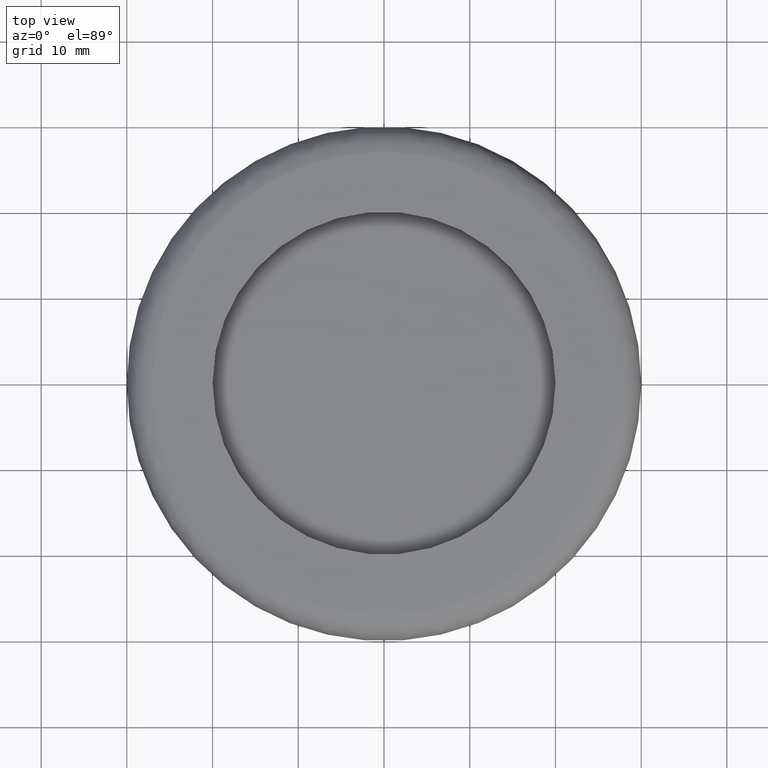
[diagram: clean part render]
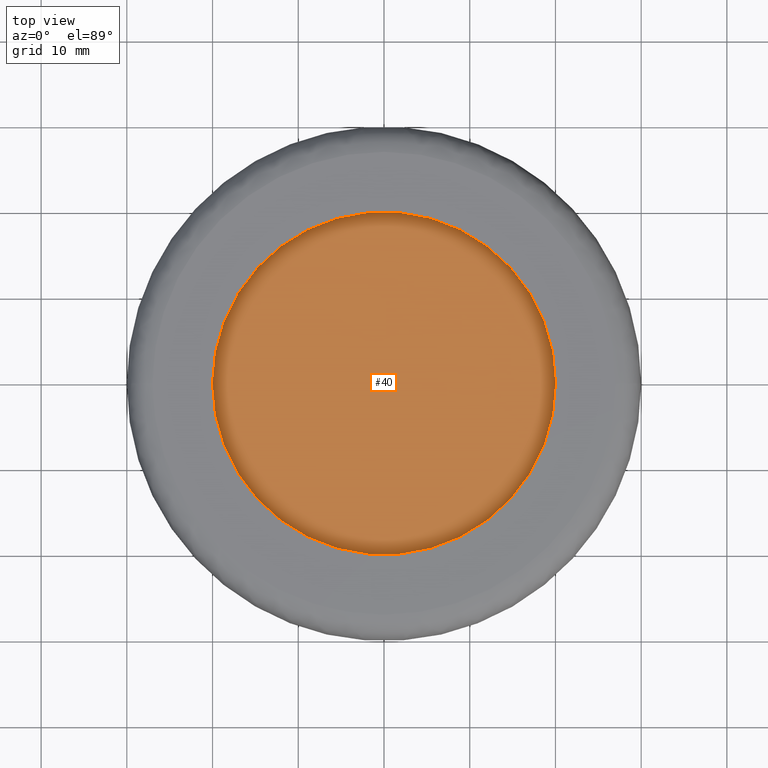
[diagram: same view with one face highlighted and labeled with its STEP entity id]
A machine part, top view. The second image highlights one B-rep face of the part: STEP entity #40.
In plain terms, the highlighted planar face has unit normal (-0, 0, -1).
Its self-contained STEP definition (entity closure, byte-faithful):
#40=ADVANCED_FACE('',(#61),#60,.F.);
#60=PLANE('',#267);
#61=FACE_OUTER_BOUND('',#268,.T.);
#264=CARTESIAN_POINT('',(4.60000000000E+01,-4.15692193817E+01,-1.00000000000E+00));
#265=DIRECTION('',(-0.00000000000E+00,0.00000000000E+00,-1.00000000000E+00));
#266=DIRECTION('',(-1.00000000000E+00,0.00000000000E+00,0.00000000000E+00));
#267=AXIS2_PLACEMENT_3D('',#264,#265,#266);
#268=EDGE_LOOP('',(#452,#453));
#452=ORIENTED_EDGE('',*,*,#528,.F.);
#453=ORIENTED_EDGE('',*,*,#529,.F.);
#528=EDGE_CURVE('',#566,#567,#568,.T.);
#529=EDGE_CURVE('',#567,#566,#574,.T.);
#566=VERTEX_POINT('',#818);
#567=VERTEX_POINT('',#819);
#568=CIRCLE('',#823,2.00000000000E+01);
#574=CIRCLE('',#827,2.00000000000E+01);
#818=CARTESIAN_POINT('',(2.00000000000E+01,0.00000000000E+00,-1.00000000000E+00));
#819=CARTESIAN_POINT('',(-2.00000000000E+01,0.00000000000E+00,-1.00000000000E+00));
#820=CARTESIAN_POINT('',(-1.19371179608E-12,0.00000000000E+00,-1.00000000000E+00));
#821=DIRECTION('',(-0.00000000000E+00,0.00000000000E+00,-1.00000000000E+00));
#822=DIRECTION('',(-1.00000000000E+00,-1.22460635382E-16,0.00000000000E+00));
#823=AXIS2_PLACEMENT_3D('',#820,#821,#822);
#824=CARTESIAN_POINT('',(-1.19371179608E-12,0.00000000000E+00,-1.00000000000E+00));
#825=DIRECTION('',(-0.00000000000E+00,0.00000000000E+00,-1.00000000000E+00));
#826=DIRECTION('',(-1.00000000000E+00,-1.22460635382E-16,0.00000000000E+00));
#827=AXIS2_PLACEMENT_3D('',#824,#825,#826);